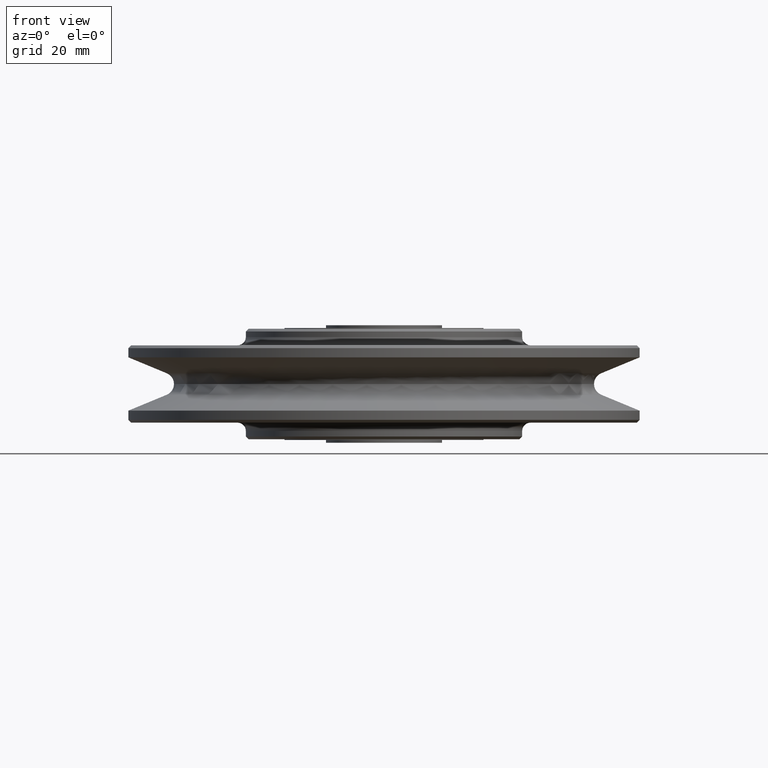
[diagram: clean part render]
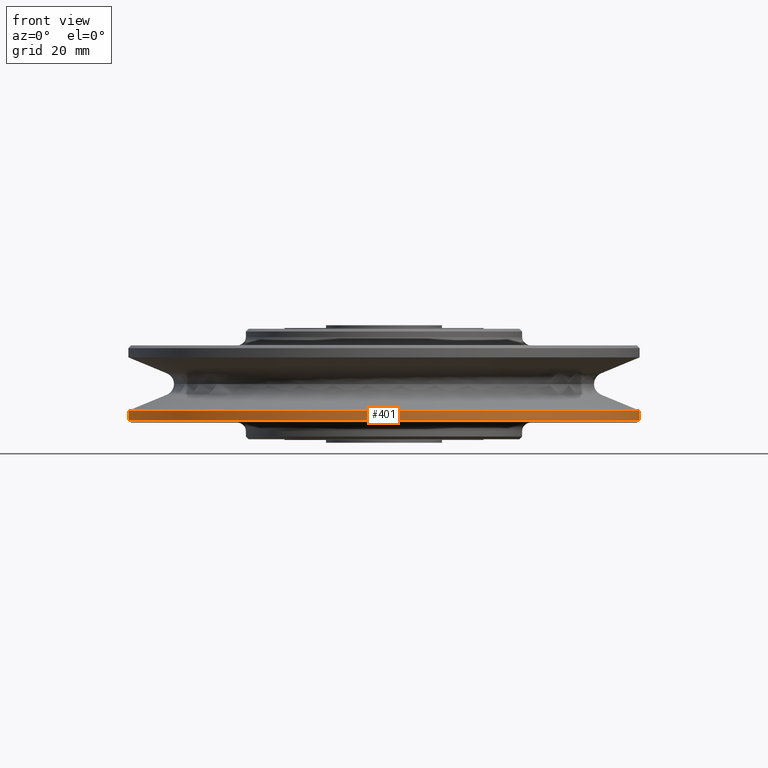
[diagram: same view with one face highlighted and labeled with its STEP entity id]
A machine part, front view. The second image highlights one B-rep face of the part: STEP entity #401.
In plain terms, the highlighted cylindrical surface (partial cylindrical patch) has radius 92.5 mm, axis along (0, 0, 1).
Its self-contained STEP definition (entity closure, byte-faithful):
#401=ADVANCED_FACE('',(#825),#826,.T.);
#825=FACE_OUTER_BOUND('',#1243,.T.);
#826=CYLINDRICAL_SURFACE('',#1244,92.5);
#1243=EDGE_LOOP('',(#2529,#2530,#2531,#2532));
#1244=AXIS2_PLACEMENT_3D('',#2533,#2534,#2535);
#2529=ORIENTED_EDGE('',*,*,#2661,.T.);
#2530=ORIENTED_EDGE('',*,*,#3081,.F.);
#2531=ORIENTED_EDGE('',*,*,#2663,.T.);
#2532=ORIENTED_EDGE('',*,*,#3079,.T.);
#2533=CARTESIAN_POINT('',(0.0,0.0,-11.320437));
#2534=DIRECTION('',(0.0,0.0,1.0));
#2535=DIRECTION('',(1.0,0.0,0.0));
#2661=EDGE_CURVE('',#3256,#3249,#3257,.T.);
#2663=EDGE_CURVE('',#3251,#3258,#3260,.T.);
#3079=EDGE_CURVE('',#3258,#3256,#3870,.T.);
#3081=EDGE_CURVE('',#3251,#3249,#3872,.T.);
#3249=VERTEX_POINT('',#5106);
#3251=VERTEX_POINT('',#5109);
#3256=VERTEX_POINT('',#5115);
#3257=LINE('',#5116,#5117);
#3258=VERTEX_POINT('',#5118);
#3260=LINE('',#5120,#5121);
#3870=CIRCLE('',#8503,92.5);
#3872=CIRCLE('',#8505,92.5);
#5106=CARTESIAN_POINT('',(92.5,0.0,-9.640874));
#5109=CARTESIAN_POINT('',(-92.5,1.1327982892113E-014,-9.640874));
#5115=CARTESIAN_POINT('',(92.5,0.0,-13.0));
#5116=CARTESIAN_POINT('',(92.5,-1.1327982892113E-014,-11.320437));
#5117=VECTOR('',#8652,1.0);
#5118=CARTESIAN_POINT('',(-92.5,1.1327982892113E-014,-13.0));
#5120=CARTESIAN_POINT('',(-92.5,1.1327982892113E-014,-11.320437));
#5121=VECTOR('',#8656,1.0);
#8503=AXIS2_PLACEMENT_3D('',#9134,#9135,#9136);
#8505=AXIS2_PLACEMENT_3D('',#9137,#9138,#9139);
#8652=DIRECTION('',(0.0,0.0,1.0));
#8656=DIRECTION('',(-0.0,-0.0,-1.0));
#9134=CARTESIAN_POINT('',(0.0,0.0,-13.0));
#9135=DIRECTION('',(0.0,0.0,1.0));
#9136=DIRECTION('',(1.0,0.0,0.0));
#9137=CARTESIAN_POINT('',(0.0,0.0,-9.640874));
#9138=DIRECTION('',(0.0,0.0,1.0));
#9139=DIRECTION('',(1.0,0.0,0.0));